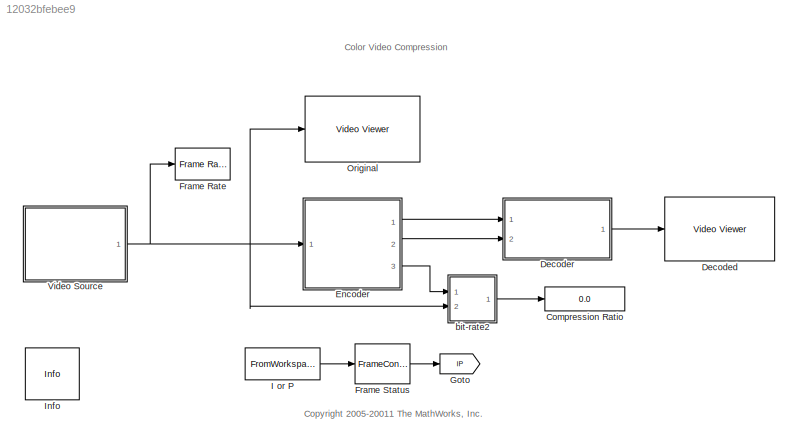
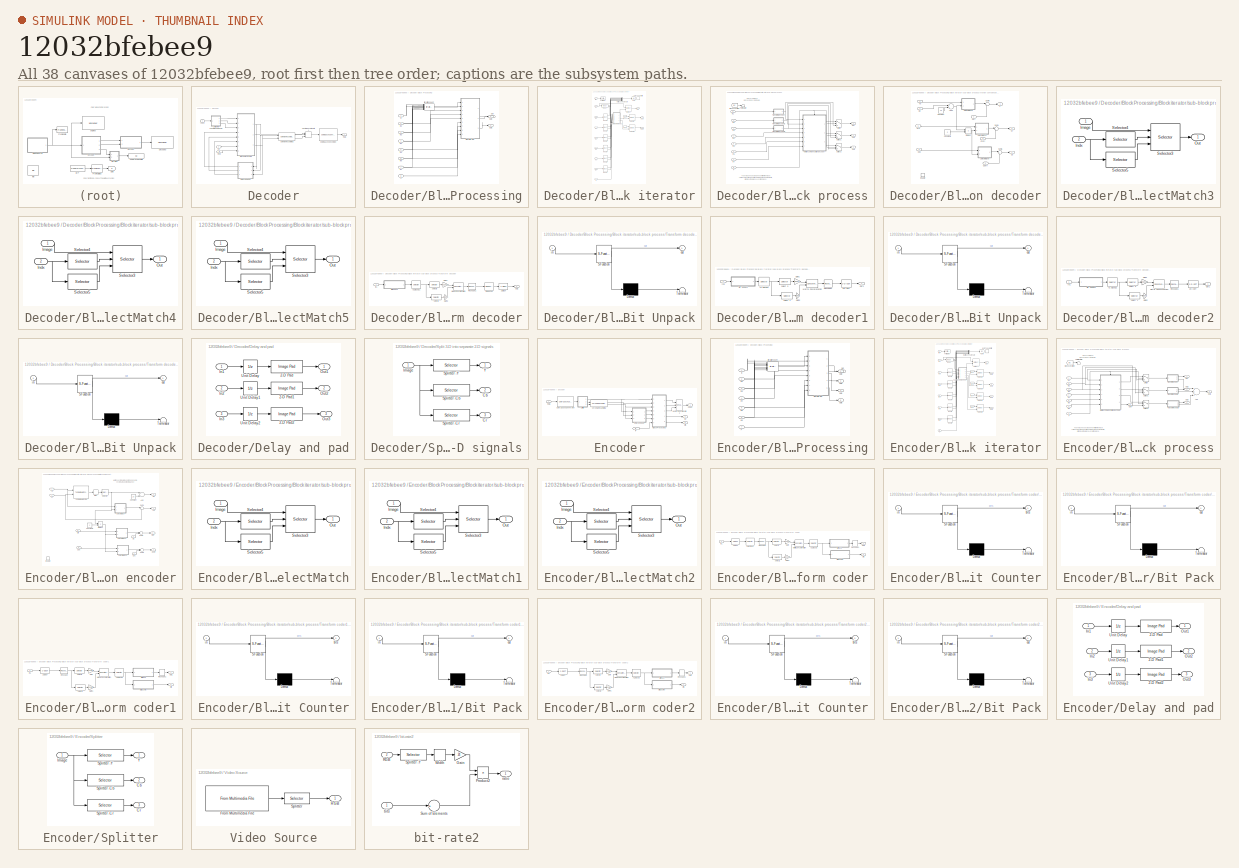
[diagram: thumbnail index - all 38 canvases of the model, root first then tree order]
MODEL slx_12032bfebee9
KIND model
CONFIG AbsTol = auto
CONFIG FixedStep = auto
CONFIG MaxStep = auto
CONFIG MinStep = auto
CONFIG RelTol = 1e-3
CONFIG SampleTimeConstraint = Unconstrained
CONFIG Solver = FixedStepDiscrete
CONFIG SolverMode = Auto
CONFIG SolverName = FixedStepDiscrete
CONFIG StartTime = 0.0
CONFIG StopTime = inf
BLOCK [Display] Compression Ratio
  Decimation = 1
  Ports = [1]
BLOCK [Reference] Decoded  REF=visionsinks/Video Viewer
  Ports = [1]
  SourceBlock = visionsinks/Video Viewer
  SourceType = Video Viewer
  UserDataPersistent = on
BLOCK [SubSystem] Decoder
  Ports = [2, 1]
  RequestExecContextInheritance = off
  Variant = off
BLOCK [SubSystem] Decoder/Block Processing
  CopyFcn = set_param(gcb,'LinkStatus','none');
  DialogController = vipDDGCreate
  Ports = [8, 3]
  RequestExecContextInheritance = off
  TreatAsAtomicUnit = on
  Variant = off
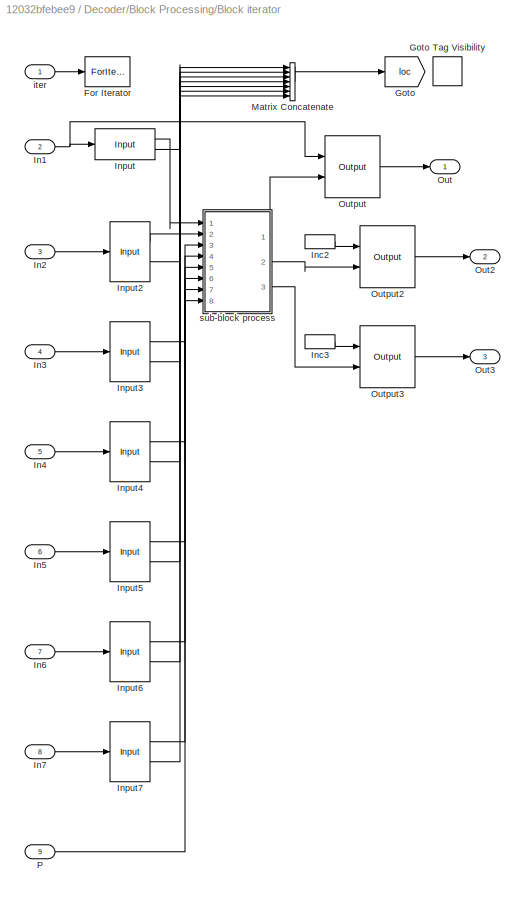
BLOCK [SubSystem] Decoder/Block Processing/Block iterator
  CopyFcn = set_param(gcb,'ReferenceBlock','');
  Ports = [9, 3]
  RequestExecContextInheritance = off
  Variant = off
BLOCK [ForIterator] Decoder/Block Processing/Block iterator/For Iterator
  IndexMode = Zero-based
  IterationLimit = (sz(1)/M)*(sz(2)/N)
  IterationSource = external
  IterationVariableDataType = double
  Ports = [1]
  ShowIterationPort = off
BLOCK [Goto] Decoder/Block Processing/Block iterator/Goto
  GotoTag = loc
  TagVisibility = scoped
BLOCK [GotoTagVisibility] Decoder/Block Processing/Block iterator/Goto Tag Visibility
  GotoTag = loc
BLOCK [Inport] Decoder/Block Processing/Block iterator/In1
  IconDisplay = Port number
  Port = 2
BLOCK [Inport] Decoder/Block Processing/Block iterator/In2
  IconDisplay = Port number
  Port = 3
BLOCK [Inport] Decoder/Block Processing/Block iterator/In3
  IconDisplay = Port number
  Port = 4
BLOCK [Inport] Decoder/Block Processing/Block iterator/In4
  IconDisplay = Port number
  Port = 5
BLOCK [Inport] Decoder/Block Processing/Block iterator/In5
  IconDisplay = Port number
  Port = 6
BLOCK [Inport] Decoder/Block Processing/Block iterator/In6
  IconDisplay = Port number
  Port = 7
BLOCK [Inport] Decoder/Block Processing/Block iterator/In7
  IconDisplay = Port number
  Port = 8
BLOCK [InportShadow] Decoder/Block Processing/Block iterator/Inc2
  IconDisplay = Port number
  Port = 2
BLOCK [InportShadow] Decoder/Block Processing/Block iterator/Inc3
  IconDisplay = Port number
  Port = 2
BLOCK [Reference] Decoder/Block Processing/Block iterator/Input  REF=vipmisc/Input
  Ports = [1, 2]
  SourceBlock = vipmisc/Input
  SourceType = Input for block processing
BLOCK [Reference] Decoder/Block Processing/Block iterator/Input2  REF=vipmisc/Input
  Ports = [1, 2]
  SourceBlock = vipmisc/Input
  SourceType = Input for block processing
BLOCK [Reference] Decoder/Block Processing/Block iterator/Input3  REF=vipmisc/Input
  Ports = [1, 2]
  SourceBlock = vipmisc/Input
  SourceType = Input for block processing
BLOCK [Reference] Decoder/Block Processing/Block iterator/Input4  REF=vipmisc/Input
  Ports = [1, 2]
  SourceBlock = vipmisc/Input
  SourceType = Input for block processing
BLOCK [Reference] Decoder/Block Processing/Block iterator/Input5  REF=vipmisc/Input
  Ports = [1, 2]
  SourceBlock = vipmisc/Input
  SourceType = Input for block processing
BLOCK [Reference] Decoder/Block Processing/Block iterator/Input6  REF=vipmisc/Input
  Ports = [1, 2]
  SourceBlock = vipmisc/Input
  SourceType = Input for block processing
BLOCK [Reference] Decoder/Block Processing/Block iterator/Input7  REF=vipmisc/Input
  Ports = [1, 2]
  SourceBlock = vipmisc/Input
  SourceType = Input for block processing
BLOCK [Concatenate] Decoder/Block Processing/Block iterator/Matrix Concatenate
  ConcatenateDimension = 2
  Mode = Multidimensional array
  NumInputs = 7
  Ports = [7, 1]
BLOCK [Outport] Decoder/Block Processing/Block iterator/Out
  IconDisplay = Port number
BLOCK [Outport] Decoder/Block Processing/Block iterator/Out2
  IconDisplay = Port number
  Port = 2
BLOCK [Outport] Decoder/Block Processing/Block iterator/Out3
  IconDisplay = Port number
  Port = 3
BLOCK [Reference] Decoder/Block Processing/Block iterator/Output  REF=vipmisc/Output
  Ports = [2, 1]
  SourceBlock = vipmisc/Output
BLOCK [Reference] Decoder/Block Processing/Block iterator/Output2  REF=vipmisc/Output
  Ports = [2, 1]
  SourceBlock = vipmisc/Output
BLOCK [Reference] Decoder/Block Processing/Block iterator/Output3  REF=vipmisc/Output
  Ports = [2, 1]
  SourceBlock = vipmisc/Output
BLOCK [Inport] Decoder/Block Processing/Block iterator/P
  IconDisplay = Port number
  Port = 9
BLOCK [Inport] Decoder/Block Processing/Block iterator/iter
  IconDisplay = Port number
BLOCK [SubSystem] Decoder/Block Processing/Block iterator/sub-block process
  Ports = [8, 3]
  RequestExecContextInheritance = off
  Variant = off
BLOCK [From] Decoder/Block Processing/Block iterator/sub-block process/Block Location
  GotoTag = loc
  TagVisibility = scoped
BLOCK [Inport] Decoder/Block Processing/Block iterator/sub-block process/In1
  IconDisplay = Port number
BLOCK [Inport] Decoder/Block Processing/Block iterator/sub-block process/In2
  IconDisplay = Port number
  Port = 2
BLOCK [Inport] Decoder/Block Processing/Block iterator/sub-block process/In3
  IconDisplay = Port number
  Port = 3
BLOCK [Inport] Decoder/Block Processing/Block iterator/sub-block process/In4
  IconDisplay = Port number
  Port = 4
BLOCK [Inport] Decoder/Block Processing/Block iterator/sub-block process/In5
  IconDisplay = Port number
  Port = 5
BLOCK [Inport] Decoder/Block Processing/Block iterator/sub-block process/In6
  IconDisplay = Port number
  Port = 6
BLOCK [Inport] Decoder/Block Processing/Block iterator/sub-block process/In7
  IconDisplay = Port number
  Port = 7
BLOCK [SubSystem] Decoder/Block Processing/Block iterator/sub-block process/Motion compensation decoder
  Ports = [7, 3, 1]
  RequestExecContextInheritance = off
  Variant = off
BLOCK [Sum] Decoder/Block Processing/Block iterator/sub-block process/Motion compensation decoder/Add1
  InputSameDT = off
  OutDataTypeStr = single
  Ports = [2, 1]
  SaturateOnIntegerOverflow = off
BLOCK [Outport] Decoder/Block Processing/Block iterator/sub-block process/Motion compensation decoder/Cb
  IconDisplay = Port number
  Port = 2
BLOCK [Inport] Decoder/Block Processing/Block iterator/sub-block process/Motion compensation decoder/Cberr
  IconDisplay = Port number
  Port = 2
BLOCK [Inport] Decoder/Block Processing/Block iterator/sub-block process/Motion compensation decoder/Cbp
  IconDisplay = Port number
  Port = 5
BLOCK [Constant] Decoder/Block Processing/Block iterator/sub-block process/Motion compensation decoder/Constant
  OutDataTypeStr = int32
  SampleTime = -1
  Value = 15
  VectorParams1D = off
BLOCK [Constant] Decoder/Block Processing/Block iterator/sub-block process/Motion compensation decoder/Constant1
  OutDataTypeStr = int32
  SampleTime = -1
  Value = 2
  VectorParams1D = off
BLOCK [Outport] Decoder/Block Processing/Block iterator/sub-block process/Motion compensation decoder/Cr
  IconDisplay = Port number
  Port = 3
BLOCK [Inport] Decoder/Block Processing/Block iterator/sub-block process/Motion compensation decoder/Crerr
  IconDisplay = Port number
  Port = 3
BLOCK [Inport] Decoder/Block Processing/Block iterator/sub-block process/Motion compensation decoder/Crp
  IconDisplay = Port number
  Port = 6
BLOCK [Product] Decoder/Block Processing/Block iterator/sub-block process/Motion compensation decoder/Divide2
  InputSameDT = off
  Inputs = */
  OutDataTypeStr = int8
  Ports = [2, 1]
  SaturateOnIntegerOverflow = off
BLOCK [EnablePort] Decoder/Block Processing/Block iterator/sub-block process/Motion compensation decoder/Enable
  Ports = []
  PropagateVarSize = During execution
BLOCK [Inport] Decoder/Block Processing/Block iterator/sub-block process/Motion compensation decoder/MV
  IconDisplay = Port number
  Port = 7
BLOCK [SubSystem] Decoder/Block Processing/Block iterator/sub-block process/Motion compensation decoder/SelectMatch3
  Ports = [2, 1]
  RequestExecContextInheritance = off
  Variant = off
BLOCK [Inport] Decoder/Block Processing/Block iterator/sub-block process/Motion compensation decoder/SelectMatch3/Image
  IconDisplay = Port number
BLOCK [Inport] Decoder/Block Processing/Block iterator/sub-block process/Motion compensation decoder/SelectMatch3/Indx
  IconDisplay = Port number
  Port = 2
BLOCK [Outport] Decoder/Block Processing/Block iterator/sub-block process/Motion compensation decoder/SelectMatch3/Out
  IconDisplay = Port number
BLOCK [Selector] Decoder/Block Processing/Block iterator/sub-block process/Motion compensation decoder/SelectMatch3/Selector3
  IndexMode = Zero-based
  IndexOptions = Starting index (port),Starting index (port)
  Indices = 1,1
  InputPortWidth = 3
  NumberOfDimensions = 2
  OutputSizes = 16, 16
  Ports = [3, 1]
BLOCK [Selector] Decoder/Block Processing/Block iterator/sub-block process/Motion compensation decoder/SelectMatch3/Selector4
  IndexOptions = Index vector (dialog)
  Indices = 1
  InputPortWidth = 2
  OutputSizes = 1
  Ports = [1, 1]
BLOCK [Selector] Decoder/Block Processing/Block iterator/sub-block process/Motion compensation decoder/SelectMatch3/Selector5
  IndexOptions = Index vector (dialog)
  Indices = 2
  InputPortWidth = 2
  OutputSizes = 1
  Ports = [1, 1]
BLOCK [SubSystem] Decoder/Block Processing/Block iterator/sub-block process/Motion compensation decoder/SelectMatch4
  Ports = [2, 1]
  RequestExecContextInheritance = off
  Variant = off
BLOCK [Inport] Decoder/Block Processing/Block iterator/sub-block process/Motion compensation decoder/SelectMatch4/Image
  IconDisplay = Port number
BLOCK [Inport] Decoder/Block Processing/Block iterator/sub-block process/Motion compensation decoder/SelectMatch4/Indx
  IconDisplay = Port number
  Port = 2
BLOCK [Outport] Decoder/Block Processing/Block iterator/sub-block process/Motion compensation decoder/SelectMatch4/Out
  IconDisplay = Port number
BLOCK [Selector] Decoder/Block Processing/Block iterator/sub-block process/Motion compensation decoder/SelectMatch4/Selector3
  IndexMode = Zero-based
  IndexOptions = Starting index (port),Starting index (port)
  Indices = 1,1
  InputPortWidth = 3
  NumberOfDimensions = 2
  OutputSizes = 8, 8
  Ports = [3, 1]
BLOCK [Selector] Decoder/Block Processing/Block iterator/sub-block process/Motion compensation decoder/SelectMatch4/Selector4
  IndexOptions = Index vector (dialog)
  Indices = 1
  InputPortWidth = 2
  OutputSizes = 1
  Ports = [1, 1]
BLOCK [Selector] Decoder/Block Processing/Block iterator/sub-block process/Motion compensation decoder/SelectMatch4/Selector5
  IndexOptions = Index vector (dialog)
  Indices = 2
  InputPortWidth = 2
  OutputSizes = 1
  Ports = [1, 1]
BLOCK [SubSystem] Decoder/Block Processing/Block iterator/sub-block process/Motion compensation decoder/SelectMatch5
  Ports = [2, 1]
  RequestExecContextInheritance = off
  Variant = off
BLOCK [Inport] Decoder/Block Processing/Block iterator/sub-block process/Motion compensation decoder/SelectMatch5/Image
  IconDisplay = Port number
BLOCK [Inport] Decoder/Block Processing/Block iterator/sub-block process/Motion compensation decoder/SelectMatch5/Indx
  IconDisplay = Port number
  Port = 2
BLOCK [Outport] Decoder/Block Processing/Block iterator/sub-block process/Motion compensation decoder/SelectMatch5/Out
  IconDisplay = Port number
BLOCK [Selector] Decoder/Block Processing/Block iterator/sub-block process/Motion compensation decoder/SelectMatch5/Selector3
  IndexMode = Zero-based
  IndexOptions = Starting index (port),Starting index (port)
  Indices = 1,1
  InputPortWidth = 3
  NumberOfDimensions = 2
  OutputSizes = 8, 8
  Ports = [3, 1]
BLOCK [Selector] Decoder/Block Processing/Block iterator/sub-block process/Motion compensation decoder/SelectMatch5/Selector4
  IndexOptions = Index vector (dialog)
  Indices = 1
  InputPortWidth = 2
  OutputSizes = 1
  Ports = [1, 1]
BLOCK [Selector] Decoder/Block Processing/Block iterator/sub-block process/Motion compensation decoder/SelectMatch5/Selector5
  IndexOptions = Index vector (dialog)
  Indices = 2
  InputPortWidth = 2
  OutputSizes = 1
  Ports = [1, 1]
BLOCK [Sum] Decoder/Block Processing/Block iterator/sub-block process/Motion compensation decoder/Sum4
  IconShape = round
  InputSameDT = off
  Inputs = |++
  OutDataTypeStr = Inherit: Inherit via internal rule
  Ports = [2, 1]
  SaturateOnIntegerOverflow = off
BLOCK [Sum] Decoder/Block Processing/Block iterator/sub-block process/Motion compensation decoder/Sum5
  IconShape = round
  InputSameDT = off
  Inputs = |++
  OutDataTypeStr = Inherit: Inherit via internal rule
  Ports = [2, 1]
  SaturateOnIntegerOverflow = off
BLOCK [Sum] Decoder/Block Processing/Block iterator/sub-block process/Motion compensation decoder/Sum6
  IconShape = round
  InputSameDT = off
  Inputs = |++
  OutDataTypeStr = Inherit: Inherit via internal rule
  Ports = [2, 1]
  SaturateOnIntegerOverflow = off
BLOCK [Outport] Decoder/Block Processing/Block iterator/sub-block process/Motion compensation decoder/Y
  IconDisplay = Port number
BLOCK [Inport] Decoder/Block Processing/Block iterator/sub-block process/Motion compensation decoder/Yerr
  IconDisplay = Port number
BLOCK [Inport] Decoder/Block Processing/Block iterator/sub-block process/Motion compensation decoder/Yp
  IconDisplay = Port number
  Port = 4
BLOCK [Outport] Decoder/Block Processing/Block iterator/sub-block process/Out
  IconDisplay = Port number
BLOCK [Outport] Decoder/Block Processing/Block iterator/sub-block process/Out2
  IconDisplay = Port number
  Port = 2
BLOCK [Outport] Decoder/Block Processing/Block iterator/sub-block process/Out3
  IconDisplay = Port number
  Port = 3
BLOCK [Inport] Decoder/Block Processing/Block iterator/sub-block process/P
  IconDisplay = Port number
  Port = 8
BLOCK [Switch] Decoder/Block Processing/Block iterator/sub-block process/Switch
  Criteria = u2 ~= 0
  InputSameDT = off
  SaturateOnIntegerOverflow = off
BLOCK [Switch] Decoder/Block Processing/Block iterator/sub-block process/Switch1
  Criteria = u2 ~= 0
  InputSameDT = off
  SaturateOnIntegerOverflow = off
BLOCK [Switch] Decoder/Block Processing/Block iterator/sub-block process/Switch2
  Criteria = u2 ~= 0
  InputSameDT = off
  SaturateOnIntegerOverflow = off
BLOCK [Terminator] Decoder/Block Processing/Block iterator/sub-block process/Terminator I
BLOCK [SubSystem] Decoder/Block Processing/Block iterator/sub-block process/Transform decoder
  Ports = [1, 1]
  RequestExecContextInheritance = off
  Variant = off
BLOCK [Reference] Decoder/Block Processing/Block iterator/sub-block process/Transform decoder/2D IDCT  REF=visiontransforms/2-D IDCT
  Ports = [1, 1]
  SourceBlock = visiontransforms/2-D IDCT
  SourceType = 2-D IDCT
BLOCK [Selector] Decoder/Block Processing/Block iterator/sub-block process/Transform decoder/AC zigzag1
  IndexOptions = Index vector (dialog)
  Indices = [1     3     4    10    11    21    22    36     2     5     9    12    20    23    35    37     6     8    13    19    24    34    38    49     7    14    18    25    33    39    48    50    15    17    26    32    40    47    51     58    16    27    31    41    46    52    57    59    28    30    42    45     53    56    60    63    29    43    44    54    55    61    62    64]  <repeated x3 — deduplicated; at blocks: AC zigzag1>
  OutputSizes = 1
  Ports = [1, 1]
BLOCK [SubSystem] Decoder/Block Processing/Block iterator/sub-block process/Transform decoder/Bit Unpack
  ErrorFcn = Stateflow.Translate.translate
  PermitHierarchicalResolution = ExplicitOnly
  Ports = [1, 1]
  RequestExecContextInheritance = off
  SFBlockType = MATLAB Function
  TreatAsAtomicUnit = on
  Variant = off
BLOCK [Demux] Decoder/Block Processing/Block iterator/sub-block process/Transform decoder/Bit Unpack/ Demux 
  Outputs = 1
  Ports = [1, 1]
BLOCK [S-Function] Decoder/Block Processing/Block iterator/sub-block process/Transform decoder/Bit Unpack/ SFunction 
  EnableBusSupport = off
  FunctionName = sf_sfun
  PortCounts = [1 2]
  Ports = [1, 2]
  SFunctionDeploymentMode = off
  Tag = Stateflow S-Function vipcodec_color 4
BLOCK [Terminator] Decoder/Block Processing/Block iterator/sub-block process/Transform decoder/Bit Unpack/ Terminator 
BLOCK [Inport] Decoder/Block Processing/Block iterator/sub-block process/Transform decoder/Bit Unpack/in
  IconDisplay = Port number
BLOCK [Outport] Decoder/Block Processing/Block iterator/sub-block process/Transform decoder/Bit Unpack/out
  IconDisplay = Port number
BLOCK [Gain] Decoder/Block Processing/Block iterator/sub-block process/Transform decoder/Gain1
  Gain = 16/255
  OutDataTypeStr = Inherit: Inherit via internal rule
  ParamDataTypeStr = Inherit: Inherit via internal rule
  SaturateOnIntegerOverflow = off
BLOCK [Gain] Decoder/Block Processing/Block iterator/sub-block process/Transform decoder/Gain2
  Gain = 16/255
  OutDataTypeStr = Inherit: Inherit via internal rule
  ParamDataTypeStr = Inherit: Inherit via internal rule
  SaturateOnIntegerOverflow = off
BLOCK [Reference] Decoder/Block Processing/Block iterator/sub-block process/Transform decoder/Image Pad  REF=visionutilities/Image Pad
  Ports = [1, 1]
  SourceBlock = visionutilities/Image Pad
  SourceType = Image Pad
BLOCK [Inport] Decoder/Block Processing/Block iterator/sub-block process/Transform decoder/In1
  IconDisplay = Port number
BLOCK [Concatenate] Decoder/Block Processing/Block iterator/sub-block process/Transform decoder/Matrix Concatenation
  Mode = Multidimensional array
  Ports = [2, 1]
BLOCK [Outport] Decoder/Block Processing/Block iterator/sub-block process/Transform decoder/Out1
  IconDisplay = Port number
BLOCK [Reshape] Decoder/Block Processing/Block iterator/sub-block process/Transform decoder/Reshape1
  OutputDimensionality = Customize
  OutputDimensions = [8,8]
  Ports = [1, 1]
BLOCK [Selector] Decoder/Block Processing/Block iterator/sub-block process/Transform decoder/select 0
  IndexMode = Zero-based
  IndexOptions = Index vector (dialog)
  Indices = 0
  OutputSizes = 8, 8
  Ports = [1, 1]
BLOCK [Selector] Decoder/Block Processing/Block iterator/sub-block process/Transform decoder/select 1
  IndexMode = Zero-based
  IndexOptions = Starting index (dialog)
  Indices = 1
  OutputSizes = 63
  Ports = [1, 1]
BLOCK [SubSystem] Decoder/Block Processing/Block iterator/sub-block process/Transform decoder1
  Ports = [1, 1]
  RequestExecContextInheritance = off
  Variant = off
BLOCK [Reference] Decoder/Block Processing/Block iterator/sub-block process/Transform decoder1/2D IDCT  REF=visiontransforms/2-D IDCT
  Ports = [1, 1]
  SourceBlock = visiontransforms/2-D IDCT
  SourceType = 2-D IDCT
BLOCK [Selector] Decoder/Block Processing/Block iterator/sub-block process/Transform decoder1/AC zigzag1
  IndexOptions = Index vector (dialog)
  OutputSizes = 1
  Ports = [1, 1]
BLOCK [SubSystem] Decoder/Block Processing/Block iterator/sub-block process/Transform decoder1/Bit Unpack
  ErrorFcn = Stateflow.Translate.translate
  PermitHierarchicalResolution = ExplicitOnly
  Ports = [1, 1]
  RequestExecContextInheritance = off
  SFBlockType = MATLAB Function
  TreatAsAtomicUnit = on
  Variant = off
BLOCK [Demux] Decoder/Block Processing/Block iterator/sub-block process/Transform decoder1/Bit Unpack/ Demux 
  Outputs = 1
  Ports = [1, 1]
BLOCK [S-Function] Decoder/Block Processing/Block iterator/sub-block process/Transform decoder1/Bit Unpack/ SFunction 
  EnableBusSupport = off
  FunctionName = sf_sfun
  PortCounts = [1 2]
  Ports = [1, 2]
  SFunctionDeploymentMode = off
  Tag = Stateflow S-Function vipcodec_color 5
BLOCK [Terminator] Decoder/Block Processing/Block iterator/sub-block process/Transform decoder1/Bit Unpack/ Terminator 
BLOCK [Inport] Decoder/Block Processing/Block iterator/sub-block process/Transform decoder1/Bit Unpack/in
  IconDisplay = Port number
BLOCK [Outport] Decoder/Block Processing/Block iterator/sub-block process/Transform decoder1/Bit Unpack/out
  IconDisplay = Port number
BLOCK [Gain] Decoder/Block Processing/Block iterator/sub-block process/Transform decoder1/Gain1
  Gain = 8/255
  OutDataTypeStr = Inherit: Inherit via internal rule
  ParamDataTypeStr = Inherit: Inherit via internal rule
  SaturateOnIntegerOverflow = off
BLOCK [Gain] Decoder/Block Processing/Block iterator/sub-block process/Transform decoder1/Gain2
  Gain = 8/255
  OutDataTypeStr = Inherit: Inherit via internal rule
  ParamDataTypeStr = Inherit: Inherit via internal rule
  SaturateOnIntegerOverflow = off
BLOCK [Inport] Decoder/Block Processing/Block iterator/sub-block process/Transform decoder1/In1
  IconDisplay = Port number
BLOCK [Concatenate] Decoder/Block Processing/Block iterator/sub-block process/Transform decoder1/Matrix Concatenation
  Mode = Multidimensional array
  Ports = [2, 1]
BLOCK [Outport] Decoder/Block Processing/Block iterator/sub-block process/Transform decoder1/Out1
  IconDisplay = Port number
BLOCK [Reshape] Decoder/Block Processing/Block iterator/sub-block process/Transform decoder1/Reshape1
  OutputDimensionality = Customize
  OutputDimensions = [8,8]
  Ports = [1, 1]
BLOCK [Selector] Decoder/Block Processing/Block iterator/sub-block process/Transform decoder1/select 0
  IndexMode = Zero-based
  IndexOptions = Index vector (dialog)
  Indices = 0
  OutputSizes = 8, 8
  Ports = [1, 1]
BLOCK [Selector] Decoder/Block Processing/Block iterator/sub-block process/Transform decoder1/select 1
  IndexMode = Zero-based
  IndexOptions = Starting index (dialog)
  Indices = 1
  OutputSizes = 63
  Ports = [1, 1]
BLOCK [SubSystem] Decoder/Block Processing/Block iterator/sub-block process/Transform decoder2
  Ports = [1, 1]
  RequestExecContextInheritance = off
  Variant = off
BLOCK [Reference] Decoder/Block Processing/Block iterator/sub-block process/Transform decoder2/2D IDCT  REF=visiontransforms/2-D IDCT
  Ports = [1, 1]
  SourceBlock = visiontransforms/2-D IDCT
  SourceType = 2-D IDCT
BLOCK [Selector] Decoder/Block Processing/Block iterator/sub-block process/Transform decoder2/AC zigzag1
  IndexOptions = Index vector (dialog)
  OutputSizes = 1
  Ports = [1, 1]
BLOCK [SubSystem] Decoder/Block Processing/Block iterator/sub-block process/Transform decoder2/Bit Unpack
  ErrorFcn = Stateflow.Translate.translate
  PermitHierarchicalResolution = ExplicitOnly
  Ports = [1, 1]
  RequestExecContextInheritance = off
  SFBlockType = MATLAB Function
  TreatAsAtomicUnit = on
  Variant = off
BLOCK [Demux] Decoder/Block Processing/Block iterator/sub-block process/Transform decoder2/Bit Unpack/ Demux 
  Outputs = 1
  Ports = [1, 1]
BLOCK [S-Function] Decoder/Block Processing/Block iterator/sub-block process/Transform decoder2/Bit Unpack/ SFunction 
  EnableBusSupport = off
  FunctionName = sf_sfun
  PortCounts = [1 2]
  Ports = [1, 2]
  SFunctionDeploymentMode = off
  Tag = Stateflow S-Function vipcodec_color 6
BLOCK [Terminator] Decoder/Block Processing/Block iterator/sub-block process/Transform decoder2/Bit Unpack/ Terminator 
BLOCK [Inport] Decoder/Block Processing/Block iterator/sub-block process/Transform decoder2/Bit Unpack/in
  IconDisplay = Port number
BLOCK [Outport] Decoder/Block Processing/Block iterator/sub-block process/Transform decoder2/Bit Unpack/out
  IconDisplay = Port number
BLOCK [Gain] Decoder/Block Processing/Block iterator/sub-block process/Transform decoder2/Gain1
  Gain = 8/255
  OutDataTypeStr = Inherit: Inherit via internal rule
  ParamDataTypeStr = Inherit: Inherit via internal rule
  SaturateOnIntegerOverflow = off
BLOCK [Gain] Decoder/Block Processing/Block iterator/sub-block process/Transform decoder2/Gain2
  Gain = 8/255
  OutDataTypeStr = Inherit: Inherit via internal rule
  ParamDataTypeStr = Inherit: Inherit via internal rule
  SaturateOnIntegerOverflow = off
BLOCK [Inport] Decoder/Block Processing/Block iterator/sub-block process/Transform decoder2/In1
  IconDisplay = Port number
BLOCK [Concatenate] Decoder/Block Processing/Block iterator/sub-block process/Transform decoder2/Matrix Concatenation
  Mode = Multidimensional array
  Ports = [2, 1]
BLOCK [Outport] Decoder/Block Processing/Block iterator/sub-block process/Transform decoder2/Out1
  IconDisplay = Port number
BLOCK [Reshape] Decoder/Block Processing/Block iterator/sub-block process/Transform decoder2/Reshape1
  OutputDimensionality = Customize
  OutputDimensions = [8,8]
  Ports = [1, 1]
BLOCK [Selector] Decoder/Block Processing/Block iterator/sub-block process/Transform decoder2/select 0
  IndexMode = Zero-based
  IndexOptions = Index vector (dialog)
  Indices = (0)
  OutputSizes = 8,8
  Ports = [1, 1]
BLOCK [Selector] Decoder/Block Processing/Block iterator/sub-block process/Transform decoder2/select 1
  IndexMode = Zero-based
  IndexOptions = Starting index (dialog)
  Indices = (1)
  OutputSizes = 63
  Ports = [1, 1]
BLOCK [Inport] Decoder/Block Processing/In
  IconDisplay = Port number
BLOCK [Inport] Decoder/Block Processing/In2
  IconDisplay = Port number
  Port = 2
BLOCK [Inport] Decoder/Block Processing/In3
  IconDisplay = Port number
  Port = 3
BLOCK [Inport] Decoder/Block Processing/In4
  IconDisplay = Port number
  Port = 4
BLOCK [Inport] Decoder/Block Processing/In5
  IconDisplay = Port number
  Port = 5
BLOCK [Inport] Decoder/Block Processing/In6
  IconDisplay = Port number
  Port = 6
BLOCK [Inport] Decoder/Block Processing/In7
  IconDisplay = Port number
  Port = 7
BLOCK [Reference] Decoder/Block Processing/Iteration count  REF=vipmisc/Iteration count
  Ports = [7, 1]
  SourceBlock = vipmisc/Iteration count
  SourceType = Block processing iteration counter
BLOCK [Outport] Decoder/Block Processing/Out
  IconDisplay = Port number
BLOCK [Outport] Decoder/Block Processing/Out2
  IconDisplay = Port number
  Port = 2
BLOCK [Outport] Decoder/Block Processing/Out3
  IconDisplay = Port number
  Port = 3
BLOCK [Inport] Decoder/Block Processing/P
  IconDisplay = Port number
  Port = 8
BLOCK [Reference] Decoder/Chroma Resampling  REF=visionconversions/Chroma
Resampling
  Ports = [2, 2]
  SourceBlock = visionconversions/Chroma\nResampling
  SourceType = Chroma Resampling
BLOCK [Reference] Decoder/Color Space Conversion  REF=visionconversions/Color Space
 Conversion
  Ports = [1, 1]
  SourceBlock = visionconversions/Color Space\n Conversion
  SourceType = Color Space Conversion
BLOCK [SubSystem] Decoder/Delay and pad
  Ports = [3, 3]
  RequestExecContextInheritance = off
  Variant = off
BLOCK [Reference] Decoder/Delay and pad/2-D Pad  REF=visionutilities/Image Pad
  Ports = [1, 1]
  SourceBlock = visionutilities/Image Pad
  SourceType = Image Pad
BLOCK [Reference] Decoder/Delay and pad/2-D Pad1  REF=visionutilities/Image Pad
  Ports = [1, 1]
  SourceBlock = visionutilities/Image Pad
  SourceType = Image Pad
BLOCK [Reference] Decoder/Delay and pad/2-D Pad2  REF=visionutilities/Image Pad
  Ports = [1, 1]
  SourceBlock = visionutilities/Image Pad
  SourceType = Image Pad
BLOCK [Inport] Decoder/Delay and pad/In1
  IconDisplay = Port number
BLOCK [Inport] Decoder/Delay and pad/In2
  IconDisplay = Port number
  Port = 2
BLOCK [Inport] Decoder/Delay and pad/In3
  IconDisplay = Port number
  Port = 3
BLOCK [Outport] Decoder/Delay and pad/Out1
  IconDisplay = Port number
BLOCK [Outport] Decoder/Delay and pad/Out2
  IconDisplay = Port number
  Port = 2
BLOCK [Outport] Decoder/Delay and pad/Out3
  IconDisplay = Port number
  Port = 3
BLOCK [UnitDelay] Decoder/Delay and pad/Unit Delay
  InputProcessing = Elements as channels (sample based)
  SampleTime = -1
BLOCK [UnitDelay] Decoder/Delay and pad/Unit Delay1
  InputProcessing = Elements as channels (sample based)
  SampleTime = -1
BLOCK [UnitDelay] Decoder/Delay and pad/Unit Delay2
  InputProcessing = Elements as channels (sample based)
  SampleTime = -1
BLOCK [From] Decoder/From
  CloseFcn = tagdialog Close
  GotoTag = IP
  TagVisibility = global
BLOCK [Inport] Decoder/MV
  IconDisplay = Port number
  Port = 2
BLOCK [Outport] Decoder/RGB
  IconDisplay = Port number
BLOCK [SubSystem] Decoder/Split 3-D into separate 2-D signals
  Ports = [1, 3]
  RequestExecContextInheritance = off
  Variant = off
BLOCK [Outport] Decoder/Split 3-D into separate 2-D signals/Cb
  IconDisplay = Port number
  Port = 2
BLOCK [Outport] Decoder/Split 3-D into separate 2-D signals/Cr
  IconDisplay = Port number
  Port = 3
BLOCK [Inport] Decoder/Split 3-D into separate 2-D signals/Image
  IconDisplay = Port number
BLOCK [Selector] Decoder/Split 3-D into separate 2-D signals/Splitter -Cb
  IndexOptions = Select all,Select all,Index vector (dialog)
  Indices = [],[],[2]
  NumberOfDimensions = 3
  OutputSizes = 1
  Ports = [1, 1]
BLOCK [Selector] Decoder/Split 3-D into separate 2-D signals/Splitter -Cr
  IndexOptions = Select all,Select all,Index vector (dialog)
  Indices = [],[],[3]
  NumberOfDimensions = 3
  OutputSizes = 1
  Ports = [1, 1]
BLOCK [Selector] Decoder/Split 3-D into separate 2-D signals/Splitter -Y
  IndexOptions = Select all,Select all,Index vector (dialog)
  Indices = [],[],[1]
  NumberOfDimensions = 3
  OutputSizes = 1
  Ports = [1, 1]
BLOCK [Outport] Decoder/Split 3-D into separate 2-D signals/Y
  IconDisplay = Port number
BLOCK [Concatenate] Decoder/Vector Concatenate1
  ConcatenateDimension = 3
  Mode = Multidimensional array
  NumInputs = 3
  Ports = [3, 1]
BLOCK [Inport] Decoder/YCbCr
  IconDisplay = Port number
BLOCK [SubSystem] Encoder
  Ports = [1, 3]
  RequestExecContextInheritance = off
  Variant = off
BLOCK [SubSystem] Encoder/Block Processing
  CopyFcn = set_param(gcb,'LinkStatus','none');
  DialogController = vipDDGCreate
  Ports = [7, 5]
  RequestExecContextInheritance = off
  TreatAsAtomicUnit = on
  Variant = off
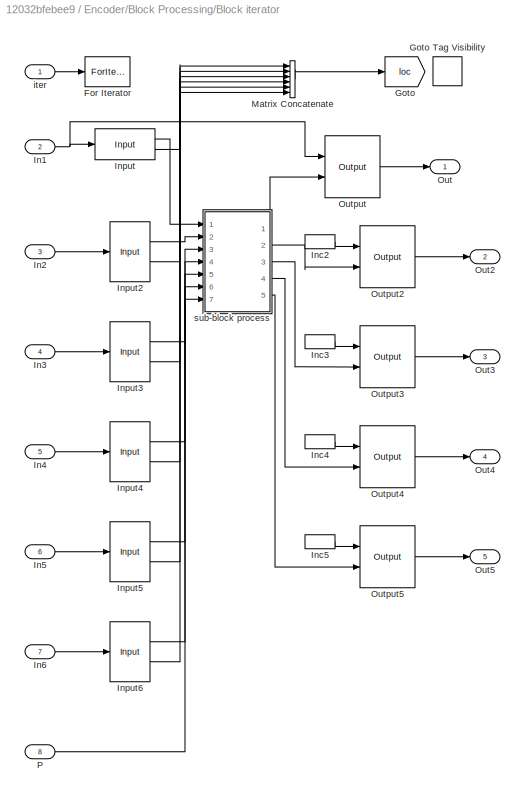
BLOCK [SubSystem] Encoder/Block Processing/Block iterator
  CopyFcn = set_param(gcb,'ReferenceBlock','');
  Ports = [8, 5]
  RequestExecContextInheritance = off
  Variant = off
BLOCK [ForIterator] Encoder/Block Processing/Block iterator/For Iterator
  IndexMode = Zero-based
  IterationLimit = (sz(1)/M)*(sz(2)/N)
  IterationSource = external
  IterationVariableDataType = double
  Ports = [1]
  ShowIterationPort = off
BLOCK [Goto] Encoder/Block Processing/Block iterator/Goto
  GotoTag = loc
  TagVisibility = scoped
BLOCK [GotoTagVisibility] Encoder/Block Processing/Block iterator/Goto Tag Visibility
  GotoTag = loc
BLOCK [Inport] Encoder/Block Processing/Block iterator/In1
  IconDisplay = Port number
  Port = 2
BLOCK [Inport] Encoder/Block Processing/Block iterator/In2
  IconDisplay = Port number
  Port = 3
BLOCK [Inport] Encoder/Block Processing/Block iterator/In3
  IconDisplay = Port number
  Port = 4
BLOCK [Inport] Encoder/Block Processing/Block iterator/In4
  IconDisplay = Port number
  Port = 5
BLOCK [Inport] Encoder/Block Processing/Block iterator/In5
  IconDisplay = Port number
  Port = 6
BLOCK [Inport] Encoder/Block Processing/Block iterator/In6
  IconDisplay = Port number
  Port = 7
BLOCK [InportShadow] Encoder/Block Processing/Block iterator/Inc2
  IconDisplay = Port number
  Port = 2
BLOCK [InportShadow] Encoder/Block Processing/Block iterator/Inc3
  IconDisplay = Port number
  Port = 2
BLOCK [InportShadow] Encoder/Block Processing/Block iterator/Inc4
  IconDisplay = Port number
  Port = 2
BLOCK [InportShadow] Encoder/Block Processing/Block iterator/Inc5
  IconDisplay = Port number
  Port = 2
BLOCK [Reference] Encoder/Block Processing/Block iterator/Input  REF=vipmisc/Input
  Ports = [1, 2]
  SourceBlock = vipmisc/Input
  SourceType = Input for block processing
BLOCK [Reference] Encoder/Block Processing/Block iterator/Input2  REF=vipmisc/Input
  Ports = [1, 2]
  SourceBlock = vipmisc/Input
  SourceType = Input for block processing
BLOCK [Reference] Encoder/Block Processing/Block iterator/Input3  REF=vipmisc/Input
  Ports = [1, 2]
  SourceBlock = vipmisc/Input
  SourceType = Input for block processing
BLOCK [Reference] Encoder/Block Processing/Block iterator/Input4  REF=vipmisc/Input
  Ports = [1, 2]
  SourceBlock = vipmisc/Input
  SourceType = Input for block processing
BLOCK [Reference] Encoder/Block Processing/Block iterator/Input5  REF=vipmisc/Input
  Ports = [1, 2]
  SourceBlock = vipmisc/Input
  SourceType = Input for block processing
BLOCK [Reference] Encoder/Block Processing/Block iterator/Input6  REF=vipmisc/Input
  Ports = [1, 2]
  SourceBlock = vipmisc/Input
  SourceType = Input for block processing
BLOCK [Concatenate] Encoder/Block Processing/Block iterator/Matrix Concatenate
  ConcatenateDimension = 2
  Mode = Multidimensional array
  NumInputs = 6
  Ports = [6, 1]
BLOCK [Outport] Encoder/Block Processing/Block iterator/Out
  IconDisplay = Port number
BLOCK [Outport] Encoder/Block Processing/Block iterator/Out2
  IconDisplay = Port number
  Port = 2
BLOCK [Outport] Encoder/Block Processing/Block iterator/Out3
  IconDisplay = Port number
  Port = 3
BLOCK [Outport] Encoder/Block Processing/Block iterator/Out4
  IconDisplay = Port number
  Port = 4
BLOCK [Outport] Encoder/Block Processing/Block iterator/Out5
  IconDisplay = Port number
  Port = 5
BLOCK [Reference] Encoder/Block Processing/Block iterator/Output  REF=vipmisc/Output
  Ports = [2, 1]
  SourceBlock = vipmisc/Output
BLOCK [Reference] Encoder/Block Processing/Block iterator/Output2  REF=vipmisc/Output
  Ports = [2, 1]
  SourceBlock = vipmisc/Output
BLOCK [Reference] Encoder/Block Processing/Block iterator/Output3  REF=vipmisc/Output
  Ports = [2, 1]
  SourceBlock = vipmisc/Output
BLOCK [Reference] Encoder/Block Processing/Block iterator/Output4  REF=vipmisc/Output
  Ports = [2, 1]
  SourceBlock = vipmisc/Output
BLOCK [Reference] Encoder/Block Processing/Block iterator/Output5  REF=vipmisc/Output
  Ports = [2, 1]
  SourceBlock = vipmisc/Output
BLOCK [Inport] Encoder/Block Processing/Block iterator/P
  IconDisplay = Port number
  Port = 8
BLOCK [Inport] Encoder/Block Processing/Block iterator/iter
  IconDisplay = Port number
BLOCK [SubSystem] Encoder/Block Processing/Block iterator/sub-block process
  Ports = [7, 5]
  RequestExecContextInheritance = off
  Variant = off
BLOCK [Sum] Encoder/Block Processing/Block iterator/sub-block process/Add
  InputSameDT = off
  Inputs = +++
  OutDataTypeStr = Inherit: Inherit via internal rule
  Ports = [3, 1]
  SaturateOnIntegerOverflow = off
BLOCK [From] Encoder/Block Processing/Block iterator/sub-block process/Block Location
  GotoTag = loc
  TagVisibility = scoped
BLOCK [Inport] Encoder/Block Processing/Block iterator/sub-block process/In1
  IconDisplay = Port number
BLOCK [Inport] Encoder/Block Processing/Block iterator/sub-block process/In2
  IconDisplay = Port number
  Port = 2
BLOCK [Inport] Encoder/Block Processing/Block iterator/sub-block process/In3
  IconDisplay = Port number
  Port = 3
BLOCK [Inport] Encoder/Block Processing/Block iterator/sub-block process/In4
  IconDisplay = Port number
  Port = 4
BLOCK [Inport] Encoder/Block Processing/Block iterator/sub-block process/In5
  IconDisplay = Port number
  Port = 5
BLOCK [Inport] Encoder/Block Processing/Block iterator/sub-block process/In6
  IconDisplay = Port number
  Port = 6
BLOCK [SubSystem] Encoder/Block Processing/Block iterator/sub-block process/Motion compensation encoder
  Ports = [6, 4, 1]
  RequestExecContextInheritance = off
  Variant = off
BLOCK [Sum] Encoder/Block Processing/Block iterator/sub-block process/Motion compensation encoder/Add
  InputSameDT = off
  Inputs = +-
  OutDataTypeStr = Inherit: Inherit via internal rule
  Ports = [2, 1]
  SaturateOnIntegerOverflow = off
BLOCK [Bias] Encoder/Block Processing/Block iterator/sub-block process/Motion compensation encoder/Bias
  Bias = -8
  SaturateOnIntegerOverflow = off
BLOCK [Inport] Encoder/Block Processing/Block iterator/sub-block process/Motion compensation encoder/Cbc
  IconDisplay = Port number
  Port = 2
BLOCK [Outport] Encoder/Block Processing/Block iterator/sub-block process/Motion compensation encoder/Cberr
  IconDisplay = Port number
  Port = 2
BLOCK [Inport] Encoder/Block Processing/Block iterator/sub-block process/Motion compensation encoder/Cbp
  IconDisplay = Port number
  Port = 5
BLOCK [Constant] Encoder/Block Processing/Block iterator/sub-block process/Motion compensation encoder/Constant
  OutDataTypeStr = Inherit: Inherit via back propagation
  SampleTime = -1
  Value = 15
  VectorParams1D = off
BLOCK [Constant] Encoder/Block Processing/Block iterator/sub-block process/Motion compensation encoder/Constant1
  OutDataTypeStr = Inherit: Inherit via back propagation
  SampleTime = -1
  Value = 2
  VectorParams1D = off
BLOCK [Inport] Encoder/Block Processing/Block iterator/sub-block process/Motion compensation encoder/Crc
  IconDisplay = Port number
  Port = 3
BLOCK [Outport] Encoder/Block Processing/Block iterator/sub-block process/Motion compensation encoder/Crerr
  IconDisplay = Port number
  Port = 3
BLOCK [Inport] Encoder/Block Processing/Block iterator/sub-block process/Motion compensation encoder/Crp
  IconDisplay = Port number
  Port = 6
BLOCK [Product] Encoder/Block Processing/Block iterator/sub-block process/Motion compensation encoder/Divide1
  InputSameDT = off
  Inputs = */
  OutDataTypeStr = int8
  Ports = [2, 1]
  SaturateOnIntegerOverflow = off
BLOCK [EnablePort] Encoder/Block Processing/Block iterator/sub-block process/Motion compensation encoder/Enable
  Ports = []
  PropagateVarSize = During execution
BLOCK [Outport] Encoder/Block Processing/Block iterator/sub-block process/Motion compensation encoder/MV
  IconDisplay = Port number
  Port = 4
BLOCK [SubSystem] Encoder/Block Processing/Block iterator/sub-block process/Motion compensation encoder/SelectMatch
  Ports = [2, 1]
  RequestExecContextInheritance = off
  Variant = off
BLOCK [Inport] Encoder/Block Processing/Block iterator/sub-block process/Motion compensation encoder/SelectMatch/Image
  IconDisplay = Port number
BLOCK [Inport] Encoder/Block Processing/Block iterator/sub-block process/Motion compensation encoder/SelectMatch/Indx
  IconDisplay = Port number
  Port = 2
BLOCK [Outport] Encoder/Block Processing/Block iterator/sub-block process/Motion compensation encoder/SelectMatch/Out
  IconDisplay = Port number
BLOCK [Selector] Encoder/Block Processing/Block iterator/sub-block process/Motion compensation encoder/SelectMatch/Selector3
  IndexMode = Zero-based
  IndexOptions = Starting index (port),Starting index (port)
  Indices = (1),(1)
  InputPortWidth = 3
  NumberOfDimensions = 2
  OutputSizes = 16,16
  Ports = [3, 1]
BLOCK [Selector] Encoder/Block Processing/Block iterator/sub-block process/Motion compensation encoder/SelectMatch/Selector4
  IndexOptions = Index vector (dialog)
  Indices = (1)
  InputPortWidth = 2
  OutputSizes = 1
  Ports = [1, 1]
BLOCK [Selector] Encoder/Block Processing/Block iterator/sub-block process/Motion compensation encoder/SelectMatch/Selector5
  IndexOptions = Index vector (dialog)
  Indices = (2)
  InputPortWidth = 2
  OutputSizes = 1
  Ports = [1, 1]
BLOCK [SubSystem] Encoder/Block Processing/Block iterator/sub-block process/Motion compensation encoder/SelectMatch1
  Ports = [2, 1]
  RequestExecContextInheritance = off
  Variant = off
BLOCK [Inport] Encoder/Block Processing/Block iterator/sub-block process/Motion compensation encoder/SelectMatch1/Image
  IconDisplay = Port number
BLOCK [Inport] Encoder/Block Processing/Block iterator/sub-block process/Motion compensation encoder/SelectMatch1/Indx
  IconDisplay = Port number
  Port = 2
BLOCK [Outport] Encoder/Block Processing/Block iterator/sub-block process/Motion compensation encoder/SelectMatch1/Out
  IconDisplay = Port number
BLOCK [Selector] Encoder/Block Processing/Block iterator/sub-block process/Motion compensation encoder/SelectMatch1/Selector3
  IndexMode = Zero-based
  IndexOptions = Starting index (port),Starting index (port)
  Indices = (1),(1)
  InputPortWidth = 3
  NumberOfDimensions = 2
  OutputSizes = 8,8
  Ports = [3, 1]
BLOCK [Selector] Encoder/Block Processing/Block iterator/sub-block process/Motion compensation encoder/SelectMatch1/Selector4
  IndexOptions = Index vector (dialog)
  Indices = (1)
  InputPortWidth = 2
  OutputSizes = 1
  Ports = [1, 1]
BLOCK [Selector] Encoder/Block Processing/Block iterator/sub-block process/Motion compensation encoder/SelectMatch1/Selector5
  IndexOptions = Index vector (dialog)
  Indices = (2)
  InputPortWidth = 2
  OutputSizes = 1
  Ports = [1, 1]
BLOCK [SubSystem] Encoder/Block Processing/Block iterator/sub-block process/Motion compensation encoder/SelectMatch2
  Ports = [2, 1]
  RequestExecContextInheritance = off
  Variant = off
BLOCK [Inport] Encoder/Block Processing/Block iterator/sub-block process/Motion compensation encoder/SelectMatch2/Image
  IconDisplay = Port number
BLOCK [Inport] Encoder/Block Processing/Block iterator/sub-block process/Motion compensation encoder/SelectMatch2/Indx
  IconDisplay = Port number
  Port = 2
BLOCK [Outport] Encoder/Block Processing/Block iterator/sub-block process/Motion compensation encoder/SelectMatch2/Out
  IconDisplay = Port number
BLOCK [Selector] Encoder/Block Processing/Block iterator/sub-block process/Motion compensation encoder/SelectMatch2/Selector3
  IndexMode = Zero-based
  IndexOptions = Starting index (port),Starting index (port)
  Indices = (1),(1)
  InputPortWidth = 3
  NumberOfDimensions = 2
  OutputSizes = 8,8
  Ports = [3, 1]
BLOCK [Selector] Encoder/Block Processing/Block iterator/sub-block process/Motion compensation encoder/SelectMatch2/Selector4
  IndexOptions = Index vector (dialog)
  Indices = (1)
  InputPortWidth = 2
  OutputSizes = 1
  Ports = [1, 1]
BLOCK [Selector] Encoder/Block Processing/Block iterator/sub-block process/Motion compensation encoder/SelectMatch2/Selector5
  IndexOptions = Index vector (dialog)
  Indices = (2)
  InputPortWidth = 2
  OutputSizes = 1
  Ports = [1, 1]
BLOCK [Selector] Encoder/Block Processing/Block iterator/sub-block process/Motion compensation encoder/Selector
  IndexOptions = Index vector (dialog)
  Indices = [2 1]
  InputPortWidth = 2
  OutputSizes = 1
  Ports = [1, 1]
BLOCK [Sum] Encoder/Block Processing/Block iterator/sub-block process/Motion compensation encoder/Sum1
  IconShape = round
  InputSameDT = off
  Inputs = |-+
  Ports = [2, 1]
  SaturateOnIntegerOverflow = off
BLOCK [Sum] Encoder/Block Processing/Block iterator/sub-block process/Motion compensation encoder/Sum2
  IconShape = round
  InputSameDT = off
  Inputs = |-+
  Ports = [2, 1]
  SaturateOnIntegerOverflow = off
BLOCK [Sum] Encoder/Block Processing/Block iterator/sub-block process/Motion compensation encoder/Sum3
  IconShape = round
  InputSameDT = off
  Inputs = |-+
  Ports = [2, 1]
  SaturateOnIntegerOverflow = off
BLOCK [Reference] Encoder/Block Processing/Block iterator/sub-block process/Motion compensation encoder/Template Matching  REF=visionanalysis/Template Matching
  Ports = [2, 1]
  SourceBlock = visionanalysis/Template Matching
  SourceType = Template Matching
BLOCK [Inport] Encoder/Block Processing/Block iterator/sub-block process/Motion compensation encoder/Yc
  IconDisplay = Port number
BLOCK [Outport] Encoder/Block Processing/Block iterator/sub-block process/Motion compensation encoder/Yerr
  IconDisplay = Port number
BLOCK [Inport] Encoder/Block Processing/Block iterator/sub-block process/Motion compensation encoder/Yp
  IconDisplay = Port number
  Port = 4
BLOCK [Outport] Encoder/Block Processing/Block iterator/sub-block process/Out
  IconDisplay = Port number
BLOCK [Outport] Encoder/Block Processing/Block iterator/sub-block process/Out2
  IconDisplay = Port number
  Port = 2
BLOCK [Outport] Encoder/Block Processing/Block iterator/sub-block process/Out3
  IconDisplay = Port number
  Port = 3
BLOCK [Outport] Encoder/Block Processing/Block iterator/sub-block process/Out4
  IconDisplay = Port number
  Port = 4
BLOCK [Outport] Encoder/Block Processing/Block iterator/sub-block process/Out5
  IconDisplay = Port number
  Port = 5
BLOCK [Inport] Encoder/Block Processing/Block iterator/sub-block process/P
  IconDisplay = Port number
  Port = 7
BLOCK [Switch] Encoder/Block Processing/Block iterator/sub-block process/Switch
  Criteria = u2 ~= 0
  InputSameDT = off
  SaturateOnIntegerOverflow = off
BLOCK [Switch] Encoder/Block Processing/Block iterator/sub-block process/Switch1
  Criteria = u2 ~= 0
  InputSameDT = off
  SaturateOnIntegerOverflow = off
BLOCK [Switch] Encoder/Block Processing/Block iterator/sub-block process/Switch2
  Criteria = u2 ~= 0
  InputSameDT = off
  SaturateOnIntegerOverflow = off
BLOCK [Terminator] Encoder/Block Processing/Block iterator/sub-block process/TerminatorB
BLOCK [SubSystem] Encoder/Block Processing/Block iterator/sub-block process/Transform coder
  Ports = [1, 2]
  RequestExecContextInheritance = off
  Variant = off
BLOCK [Reference] Encoder/Block Processing/Block iterator/sub-block process/Transform coder/2D DCT  REF=visiontransforms/2-D DCT
  Ports = [1, 1]
  SourceBlock = visiontransforms/2-D DCT
  SourceType = 2-D DCT
BLOCK [Selector] Encoder/Block Processing/Block iterator/sub-block process/Transform coder/AC zigzag
  IndexOptions = Index vector (dialog)
  Indices = ([0  8     1     2     9    16    24    17    10     3     4    11    18    25  32    40    33    26    19    12     5     6    13    20    27    34    41  48    56    49    42    35    28    21    14     7    15    22    29    36  43    50    57    58    51    44    37    30    23    31    38    45    52  59    60    53    46    39    47    54    61    62    55    63]+1)  <repeated x3 — deduplicated; at blocks: AC zigzag>
  OutputSizes = 1
  Ports = [1, 1]
BLOCK [SubSystem] Encoder/Block Processing/Block iterator/sub-block process/Transform coder/Bit Counter
  ErrorFcn = Stateflow.Translate.translate
  PermitHierarchicalResolution = ExplicitOnly
  Ports = [1, 1]
  RequestExecContextInheritance = off
  SFBlockType = MATLAB Function
  TreatAsAtomicUnit = on
  Variant = off
BLOCK [Demux] Encoder/Block Processing/Block iterator/sub-block process/Transform coder/Bit Counter/ Demux 
  Outputs = 1
  Ports = [1, 1]
BLOCK [S-Function] Encoder/Block Processing/Block iterator/sub-block process/Transform coder/Bit Counter/ SFunction 
  EnableBusSupport = off
  FunctionName = sf_sfun
  PortCounts = [1 2]
  Ports = [1, 2]
  SFunctionDeploymentMode = off
  Tag = Stateflow S-Function vipcodec_color 1
BLOCK [Terminator] Encoder/Block Processing/Block iterator/sub-block process/Transform coder/Bit Counter/ Terminator 
BLOCK [Outport] Encoder/Block Processing/Block iterator/sub-block process/Transform coder/Bit Counter/bits
  IconDisplay = Port number
BLOCK [Inport] Encoder/Block Processing/Block iterator/sub-block process/Transform coder/Bit Counter/in
  IconDisplay = Port number
BLOCK [SubSystem] Encoder/Block Processing/Block iterator/sub-block process/Transform coder/Bit Pack
  ErrorFcn = Stateflow.Translate.translate
  PermitHierarchicalResolution = ExplicitOnly
  Ports = [1, 1]
  RequestExecContextInheritance = off
  SFBlockType = MATLAB Function
  TreatAsAtomicUnit = on
  Variant = off
BLOCK [Demux] Encoder/Block Processing/Block iterator/sub-block process/Transform coder/Bit Pack/ Demux 
  Outputs = 1
  Ports = [1, 1]
BLOCK [S-Function] Encoder/Block Processing/Block iterator/sub-block process/Transform coder/Bit Pack/ SFunction 
  EnableBusSupport = off
  FunctionName = sf_sfun
  PortCounts = [1 2]
  Ports = [1, 2]
  SFunctionDeploymentMode = off
  Tag = Stateflow S-Function vipcodec_color 2
BLOCK [Terminator] Encoder/Block Processing/Block iterator/sub-block process/Transform coder/Bit Pack/ Terminator 
BLOCK [Inport] Encoder/Block Processing/Block iterator/sub-block process/Transform coder/Bit Pack/in
  IconDisplay = Port number
BLOCK [Outport] Encoder/Block Processing/Block iterator/sub-block process/Transform coder/Bit Pack/out
  IconDisplay = Port number
BLOCK [Gain] Encoder/Block Processing/Block iterator/sub-block process/Transform coder/Gain
  Gain = 255/16
  OutDataTypeStr = Inherit: Inherit via internal rule
  ParamDataTypeStr = Inherit: Inherit via internal rule
  SaturateOnIntegerOverflow = off
BLOCK [Gain] Encoder/Block Processing/Block iterator/sub-block process/Transform coder/Gain1
  Gain = 255/16
  OutDataTypeStr = Inherit: Inherit via internal rule
  ParamDataTypeStr = Inherit: Inherit via internal rule
  SaturateOnIntegerOverflow = off
BLOCK [Inport] Encoder/Block Processing/Block iterator/sub-block process/Transform coder/In1
  IconDisplay = Port number
BLOCK [Concatenate] Encoder/Block Processing/Block iterator/sub-block process/Transform coder/Matrix Concatenation
  Mode = Multidimensional array
  Ports = [2, 1]
BLOCK [Outport] Encoder/Block Processing/Block iterator/sub-block process/Transform coder/Out1
  IconDisplay = Port number
BLOCK [Reshape] Encoder/Block Processing/Block iterator/sub-block process/Transform coder/Reshape
  OutputDimensionality = Column vector (2-D)
  OutputDimensions = [8,8]
  Ports = [1, 1]
BLOCK [Reshape] Encoder/Block Processing/Block iterator/sub-block process/Transform coder/Reshape1
  OutputDimensionality = Column vector (2-D)
  OutputDimensions = [8,8]
  Ports = [1, 1]
BLOCK [Outport] Encoder/Block Processing/Block iterator/sub-block process/Transform coder/bits
  IconDisplay = Port number
  Port = 2
BLOCK [Selector] Encoder/Block Processing/Block iterator/sub-block process/Transform coder/select 0
  IndexMode = Zero-based
  IndexOptions = Index vector (dialog)
  Indices = (0)
  OutputSizes = 8,8
  Ports = [1, 1]
BLOCK [Selector] Encoder/Block Processing/Block iterator/sub-block process/Transform coder/select 1
  IndexMode = Zero-based
  IndexOptions = Starting index (dialog)
  Indices = (1)
  OutputSizes = 63
  Ports = [1, 1]
BLOCK [Selector] Encoder/Block Processing/Block iterator/sub-block process/Transform coder/select 8x8
  IndexMode = Zero-based
  IndexOptions = Starting index (dialog),Starting index (dialog)
  Indices = (0),(0)
  NumberOfDimensions = 2
  OutputSizes = 8,8
  Ports = [1, 1]
BLOCK [SubSystem] Encoder/Block Processing/Block iterator/sub-block process/Transform coder1
  Ports = [1, 2]
  RequestExecContextInheritance = off
  Variant = off
BLOCK [Reference] Encoder/Block Processing/Block iterator/sub-block process/Transform coder1/2D DCT  REF=visiontransforms/2-D DCT
  Ports = [1, 1]
  SourceBlock = visiontransforms/2-D DCT
  SourceType = 2-D DCT
BLOCK [Selector] Encoder/Block Processing/Block iterator/sub-block process/Transform coder1/AC zigzag
  IndexOptions = Index vector (dialog)
  OutputSizes = 1
  Ports = [1, 1]
BLOCK [SubSystem] Encoder/Block Processing/Block iterator/sub-block process/Transform coder1/Bit Counter
  ErrorFcn = Stateflow.Translate.translate
  PermitHierarchicalResolution = ExplicitOnly
  Ports = [1, 1]
  RequestExecContextInheritance = off
  SFBlockType = MATLAB Function
  TreatAsAtomicUnit = on
  Variant = off
BLOCK [Demux] Encoder/Block Processing/Block iterator/sub-block process/Transform coder1/Bit Counter/ Demux 
  Outputs = 1
  Ports = [1, 1]
BLOCK [S-Function] Encoder/Block Processing/Block iterator/sub-block process/Transform coder1/Bit Counter/ SFunction 
  EnableBusSupport = off
  FunctionName = sf_sfun
  PortCounts = [1 2]
  Ports = [1, 2]
  SFunctionDeploymentMode = off
  Tag = Stateflow S-Function vipcodec_color 3
BLOCK [Terminator] Encoder/Block Processing/Block iterator/sub-block process/Transform coder1/Bit Counter/ Terminator 
BLOCK [Outport] Encoder/Block Processing/Block iterator/sub-block process/Transform coder1/Bit Counter/bits
  IconDisplay = Port number
BLOCK [Inport] Encoder/Block Processing/Block iterator/sub-block process/Transform coder1/Bit Counter/in
  IconDisplay = Port number
BLOCK [SubSystem] Encoder/Block Processing/Block iterator/sub-block process/Transform coder1/Bit Pack
  ErrorFcn = Stateflow.Translate.translate
  PermitHierarchicalResolution = ExplicitOnly
  Ports = [1, 1]
  RequestExecContextInheritance = off
  SFBlockType = MATLAB Function
  TreatAsAtomicUnit = on
  Variant = off
BLOCK [Demux] Encoder/Block Processing/Block iterator/sub-block process/Transform coder1/Bit Pack/ Demux 
  Outputs = 1
  Ports = [1, 1]
BLOCK [S-Function] Encoder/Block Processing/Block iterator/sub-block process/Transform coder1/Bit Pack/ SFunction 
  EnableBusSupport = off
  FunctionName = sf_sfun
  PortCounts = [1 2]
  Ports = [1, 2]
  SFunctionDeploymentMode = off
  Tag = Stateflow S-Function vipcodec_color 13
BLOCK [Terminator] Encoder/Block Processing/Block iterator/sub-block process/Transform coder1/Bit Pack/ Terminator 
BLOCK [Inport] Encoder/Block Processing/Block iterator/sub-block process/Transform coder1/Bit Pack/in
  IconDisplay = Port number
BLOCK [Outport] Encoder/Block Processing/Block iterator/sub-block process/Transform coder1/Bit Pack/out
  IconDisplay = Port number
BLOCK [Gain] Encoder/Block Processing/Block iterator/sub-block process/Transform coder1/Gain
  Gain = 255/8
  OutDataTypeStr = Inherit: Inherit via internal rule
  ParamDataTypeStr = Inherit: Inherit via internal rule
  SaturateOnIntegerOverflow = off
BLOCK [Gain] Encoder/Block Processing/Block iterator/sub-block process/Transform coder1/Gain1
  Gain = 255/8
  OutDataTypeStr = Inherit: Inherit via internal rule
  ParamDataTypeStr = Inherit: Inherit via internal rule
  SaturateOnIntegerOverflow = off
BLOCK [Inport] Encoder/Block Processing/Block iterator/sub-block process/Transform coder1/In1
  IconDisplay = Port number
BLOCK [Concatenate] Encoder/Block Processing/Block iterator/sub-block process/Transform coder1/Matrix Concatenation
  Mode = Multidimensional array
  Ports = [2, 1]
BLOCK [Outport] Encoder/Block Processing/Block iterator/sub-block process/Transform coder1/Out1
  IconDisplay = Port number
BLOCK [Reshape] Encoder/Block Processing/Block iterator/sub-block process/Transform coder1/Reshape
  OutputDimensionality = Column vector (2-D)
  OutputDimensions = [8,8]
  Ports = [1, 1]
BLOCK [Reshape] Encoder/Block Processing/Block iterator/sub-block process/Transform coder1/Reshape1
  OutputDimensionality = Column vector (2-D)
  OutputDimensions = [8,8]
  Ports = [1, 1]
BLOCK [Outport] Encoder/Block Processing/Block iterator/sub-block process/Transform coder1/bits
  IconDisplay = Port number
  Port = 2
BLOCK [Selector] Encoder/Block Processing/Block iterator/sub-block process/Transform coder1/select 0
  IndexMode = Zero-based
  IndexOptions = Index vector (dialog)
  Indices = (0)
  OutputSizes = 8,8
  Ports = [1, 1]
BLOCK [Selector] Encoder/Block Processing/Block iterator/sub-block process/Transform coder1/select 1
  IndexMode = Zero-based
  IndexOptions = Starting index (dialog)
  Indices = (1)
  OutputSizes = 63
  Ports = [1, 1]
BLOCK [SubSystem] Encoder/Block Processing/Block iterator/sub-block process/Transform coder2
  Ports = [1, 2]
  RequestExecContextInheritance = off
  Variant = off
BLOCK [Reference] Encoder/Block Processing/Block iterator/sub-block process/Transform coder2/2D DCT  REF=visiontransforms/2-D DCT
  Ports = [1, 1]
  SourceBlock = visiontransforms/2-D DCT
  SourceType = 2-D DCT
BLOCK [Selector] Encoder/Block Processing/Block iterator/sub-block process/Transform coder2/AC zigzag
  IndexOptions = Index vector (dialog)
  OutputSizes = 1
  Ports = [1, 1]
BLOCK [SubSystem] Encoder/Block Processing/Block iterator/sub-block process/Transform coder2/Bit Counter
  ErrorFcn = Stateflow.Translate.translate
  PermitHierarchicalResolution = ExplicitOnly
  Ports = [1, 1]
  RequestExecContextInheritance = off
  SFBlockType = MATLAB Function
  TreatAsAtomicUnit = on
  Variant = off
BLOCK [Demux] Encoder/Block Processing/Block iterator/sub-block process/Transform coder2/Bit Counter/ Demux 
  Outputs = 1
  Ports = [1, 1]
BLOCK [S-Function] Encoder/Block Processing/Block iterator/sub-block process/Transform coder2/Bit Counter/ SFunction 
  EnableBusSupport = off
  FunctionName = sf_sfun
  PortCounts = [1 2]
  Ports = [1, 2]
  SFunctionDeploymentMode = off
  Tag = Stateflow S-Function vipcodec_color 14
BLOCK [Terminator] Encoder/Block Processing/Block iterator/sub-block process/Transform coder2/Bit Counter/ Terminator 
BLOCK [Outport] Encoder/Block Processing/Block iterator/sub-block process/Transform coder2/Bit Counter/bits
  IconDisplay = Port number
BLOCK [Inport] Encoder/Block Processing/Block iterator/sub-block process/Transform coder2/Bit Counter/in
  IconDisplay = Port number
BLOCK [SubSystem] Encoder/Block Processing/Block iterator/sub-block process/Transform coder2/Bit Pack
  ErrorFcn = Stateflow.Translate.translate
  PermitHierarchicalResolution = ExplicitOnly
  Ports = [1, 1]
  RequestExecContextInheritance = off
  SFBlockType = MATLAB Function
  TreatAsAtomicUnit = on
  Variant = off
BLOCK [Demux] Encoder/Block Processing/Block iterator/sub-block process/Transform coder2/Bit Pack/ Demux 
  Outputs = 1
  Ports = [1, 1]
BLOCK [S-Function] Encoder/Block Processing/Block iterator/sub-block process/Transform coder2/Bit Pack/ SFunction 
  EnableBusSupport = off
  FunctionName = sf_sfun
  PortCounts = [1 2]
  Ports = [1, 2]
  SFunctionDeploymentMode = off
  Tag = Stateflow S-Function vipcodec_color 15
BLOCK [Terminator] Encoder/Block Processing/Block iterator/sub-block process/Transform coder2/Bit Pack/ Terminator 
BLOCK [Inport] Encoder/Block Processing/Block iterator/sub-block process/Transform coder2/Bit Pack/in
  IconDisplay = Port number
BLOCK [Outport] Encoder/Block Processing/Block iterator/sub-block process/Transform coder2/Bit Pack/out
  IconDisplay = Port number
BLOCK [Gain] Encoder/Block Processing/Block iterator/sub-block process/Transform coder2/Gain
  Gain = 255/8
  OutDataTypeStr = Inherit: Inherit via internal rule
  ParamDataTypeStr = Inherit: Inherit via internal rule
  SaturateOnIntegerOverflow = off
BLOCK [Gain] Encoder/Block Processing/Block iterator/sub-block process/Transform coder2/Gain1
  Gain = 255/8
  OutDataTypeStr = Inherit: Inherit via internal rule
  ParamDataTypeStr = Inherit: Inherit via internal rule
  SaturateOnIntegerOverflow = off
BLOCK [Inport] Encoder/Block Processing/Block iterator/sub-block process/Transform coder2/In1
  IconDisplay = Port number
BLOCK [Concatenate] Encoder/Block Processing/Block iterator/sub-block process/Transform coder2/Matrix Concatenation
  Mode = Multidimensional array
  Ports = [2, 1]
BLOCK [Outport] Encoder/Block Processing/Block iterator/sub-block process/Transform coder2/Out1
  IconDisplay = Port number
BLOCK [Reshape] Encoder/Block Processing/Block iterator/sub-block process/Transform coder2/Reshape
  OutputDimensionality = Column vector (2-D)
  OutputDimensions = [8,8]
  Ports = [1, 1]
BLOCK [Reshape] Encoder/Block Processing/Block iterator/sub-block process/Transform coder2/Reshape1
  OutputDimensionality = Column vector (2-D)
  OutputDimensions = [8,8]
  Ports = [1, 1]
BLOCK [Outport] Encoder/Block Processing/Block iterator/sub-block process/Transform coder2/bits
  IconDisplay = Port number
  Port = 2
BLOCK [Selector] Encoder/Block Processing/Block iterator/sub-block process/Transform coder2/select 0
  IndexMode = Zero-based
  IndexOptions = Index vector (dialog)
  Indices = (0)
  OutputSizes = 8,8
  Ports = [1, 1]
BLOCK [Selector] Encoder/Block Processing/Block iterator/sub-block process/Transform coder2/select 1
  IndexMode = Zero-based
  IndexOptions = Starting index (dialog)
  Indices = (1)
  OutputSizes = 63
  Ports = [1, 1]
BLOCK [Inport] Encoder/Block Processing/In
  IconDisplay = Port number
BLOCK [Inport] Encoder/Block Processing/In2
  IconDisplay = Port number
  Port = 2
BLOCK [Inport] Encoder/Block Processing/In3
  IconDisplay = Port number
  Port = 3
BLOCK [Inport] Encoder/Block Processing/In4
  IconDisplay = Port number
  Port = 4
BLOCK [Inport] Encoder/Block Processing/In5
  IconDisplay = Port number
  Port = 5
BLOCK [Inport] Encoder/Block Processing/In6
  IconDisplay = Port number
  Port = 6
BLOCK [Reference] Encoder/Block Processing/Iteration count  REF=vipmisc/Iteration count
  Ports = [6, 1]
  SourceBlock = vipmisc/Iteration count
  SourceType = Block processing iteration counter
BLOCK [Outport] Encoder/Block Processing/Out
  IconDisplay = Port number
BLOCK [Outport] Encoder/Block Processing/Out2
  IconDisplay = Port number
  Port = 2
BLOCK [Outport] Encoder/Block Processing/Out3
  IconDisplay = Port number
  Port = 3
BLOCK [Outport] Encoder/Block Processing/Out4
  IconDisplay = Port number
  Port = 4
BLOCK [Outport] Encoder/Block Processing/Out5
  IconDisplay = Port number
  Port = 5
BLOCK [Inport] Encoder/Block Processing/P
  IconDisplay = Port number
  Port = 7
BLOCK [Reference] Encoder/Chroma Resampling  REF=visionconversions/Chroma
Resampling
  Ports = [2, 2]
  SourceBlock = visionconversions/Chroma\nResampling
  SourceType = Chroma Resampling
BLOCK [Reference] Encoder/Color Space Conversion  REF=visionconversions/Color Space
 Conversion
  Ports = [1, 1]
  SourceBlock = visionconversions/Color Space\n Conversion
  SourceType = Color Space Conversion
BLOCK [SubSystem] Encoder/Delay and pad
  Ports = [3, 3]
  RequestExecContextInheritance = off
  Variant = off
BLOCK [Reference] Encoder/Delay and pad/2-D Pad  REF=visionutilities/Image Pad
  Ports = [1, 1]
  SourceBlock = visionutilities/Image Pad
  SourceType = Image Pad
BLOCK [Reference] Encoder/Delay and pad/2-D Pad1  REF=visionutilities/Image Pad
  Ports = [1, 1]
  SourceBlock = visionutilities/Image Pad
  SourceType = Image Pad
BLOCK [Reference] Encoder/Delay and pad/2-D Pad2  REF=visionutilities/Image Pad
  Ports = [1, 1]
  SourceBlock = visionutilities/Image Pad
  SourceType = Image Pad
BLOCK [Inport] Encoder/Delay and pad/In1
  IconDisplay = Port number
BLOCK [Inport] Encoder/Delay and pad/In2
  IconDisplay = Port number
  Port = 2
BLOCK [Inport] Encoder/Delay and pad/In3
  IconDisplay = Port number
  Port = 3
BLOCK [Outport] Encoder/Delay and pad/Out1
  IconDisplay = Port number
BLOCK [Outport] Encoder/Delay and pad/Out2
  IconDisplay = Port number
  Port = 2
BLOCK [Outport] Encoder/Delay and pad/Out3
  IconDisplay = Port number
  Port = 3
BLOCK [UnitDelay] Encoder/Delay and pad/Unit Delay
  InputProcessing = Elements as channels (sample based)
  SampleTime = -1
BLOCK [UnitDelay] Encoder/Delay and pad/Unit Delay1
  InputProcessing = Elements as channels (sample based)
  SampleTime = -1
BLOCK [UnitDelay] Encoder/Delay and pad/Unit Delay2
  InputProcessing = Elements as channels (sample based)
  SampleTime = -1
BLOCK [From] Encoder/IP
  CloseFcn = tagdialog Close
  GotoTag = IP
  TagVisibility = global
BLOCK [Outport] Encoder/MV
  IconDisplay = Port number
  Port = 2
BLOCK [Inport] Encoder/RGB
  IconDisplay = Port number
BLOCK [SubSystem] Encoder/Splitter
  Ports = [1, 3]
  RequestExecContextInheritance = off
  Variant = off
BLOCK [Outport] Encoder/Splitter/Cb
  IconDisplay = Port number
  Port = 2
BLOCK [Outport] Encoder/Splitter/Cr
  IconDisplay = Port number
  Port = 3
BLOCK [Inport] Encoder/Splitter/Image
  IconDisplay = Port number
BLOCK [Selector] Encoder/Splitter/Splitter -Cb
  IndexOptions = Select all,Select all,Index vector (dialog)
  Indices = [],[],[2]
  NumberOfDimensions = 3
  OutputSizes = 1
  Ports = [1, 1]
BLOCK [Selector] Encoder/Splitter/Splitter -Cr
  IndexOptions = Select all,Select all,Index vector (dialog)
  Indices = [],[],[3]
  NumberOfDimensions = 3
  OutputSizes = 1
  Ports = [1, 1]
BLOCK [Selector] Encoder/Splitter/Splitter -Y
  IndexOptions = Select all,Select all,Index vector (dialog)
  Indices = [],[],[1]
  NumberOfDimensions = 3
  OutputSizes = 1
  Ports = [1, 1]
BLOCK [Outport] Encoder/Splitter/Y
  IconDisplay = Port number
BLOCK [Concatenate] Encoder/Vector Concatenate1
  ConcatenateDimension = 3
  Mode = Multidimensional array
  NumInputs = 3
  Ports = [3, 1]
BLOCK [Outport] Encoder/YCbCr
  IconDisplay = Port number
BLOCK [Outport] Encoder/bits
  IconDisplay = Port number
  Port = 3
BLOCK [Reference] Frame Rate  REF=visionsinks/Frame Rate
Display
  Ports = [1]
  SourceBlock = visionsinks/Frame Rate\nDisplay
  SourceType = Frame Rate Display
BLOCK [FrameConversion] Frame Status
  InheritSamplingMode = off
  OutFrame = Sample-based
  Ports = [1, 1]
BLOCK [Goto] Goto
  GotoTag = IP
  TagVisibility = global
BLOCK [FromWorkspace] I or P
  Interpolate = off
  OutputAfterFinalValue = Cyclic repetition
  VariableName = var
BLOCK [Reference] Info  REF=vipmisc/Info
  Ports = []
  SourceBlock = vipmisc/Info
  SourceType = Info
BLOCK [Reference] Original  REF=visionsinks/Video Viewer
  Ports = [1]
  SourceBlock = visionsinks/Video Viewer
  SourceType = Video Viewer
  UserDataPersistent = on
BLOCK [SubSystem] Video Source
  Ports = [0, 1]
  RequestExecContextInheritance = off
  Variant = off
BLOCK [Reference] Video Source/From Multimedia File  REF=dspvision/From Multimedia File
  Ports = [0, 1]
  SourceBlock = dspvision/From Multimedia File
  SourceType = From Multimedia File
BLOCK [Outport] Video Source/RGB
  IconDisplay = Port number
BLOCK [Selector] Video Source/Splitter
  IndexOptions = Index vector (dialog),Select all,Select all
  Indices = [1:112],[],[]
  NumberOfDimensions = 3
  OutputSizes = 1
  Ports = [1, 1]
BLOCK [SubSystem] bit-rate2
  Ports = [2, 1]
  RequestExecContextInheritance = off
  Variant = off
BLOCK [Gain] bit-rate2/Gain
  Gain = 24
  OutDataTypeStr = Inherit: Inherit via internal rule
  ParamDataTypeStr = Inherit: Inherit via internal rule
  SaturateOnIntegerOverflow = off
BLOCK [Product] bit-rate2/Product2
  InputSameDT = off
  Inputs = */
  OutDataTypeStr = Inherit: Inherit via internal rule
  Ports = [2, 1]
  SaturateOnIntegerOverflow = off
BLOCK [Inport] bit-rate2/RGB
  IconDisplay = Port number
  Port = 2
BLOCK [Selector] bit-rate2/Splitter -Y
  IndexOptions = Select all,Select all,Index vector (dialog)
  Indices = [],[],[1]
  NumberOfDimensions = 3
  OutputSizes = 1
  Ports = [1, 1]
BLOCK [Sum] bit-rate2/Sum of Elements
  CollapseDim = 2
  InputSameDT = off
  Inputs = +
  OutDataTypeStr = Inherit: Inherit via internal rule
  Ports = [1, 1]
  SaturateOnIntegerOverflow = off
BLOCK [Width] bit-rate2/Width
BLOCK [Inport] bit-rate2/bits
  IconDisplay = Port number
BLOCK [Outport] bit-rate2/ratio
  IconDisplay = Port number
ANNOTATION (root): Color Video Compression
ANNOTATION (root): <copyright redacted>
ANNOTATION Decoder/Block Processing/Block iterator/sub-block process: Place your block processing system here.
ANNOTATION Decoder/Block Processing/Block iterator/sub-block process: To avoid unexpected behavior from the mask callback function, do not rename input and output ports, or remove the Block Location block.
ANNOTATION Encoder/Block Processing/Block iterator/sub-block process: Place your block processing system here.
ANNOTATION Encoder/Block Processing/Block iterator/sub-block process: To avoid unexpected behavior from the mask callback function, do not rename input and output ports, or remove the Block Location block.
ANNOTATION Encoder/Block Processing/Block iterator/sub-block process/Motion compensation encoder: Motion vectors are found for Y and same vectors are applied for U and V
NET Decoder/Block Processing:1 -> Decoder/Delay and pad:1, Decoder/Vector Concatenate1:1
NET Decoder/Block Processing:2 -> Decoder/Chroma Resampling:1, Decoder/Delay and pad:2
NET Decoder/Block Processing:3 -> Decoder/Chroma Resampling:2, Decoder/Delay and pad:3
LINE Decoder/Chroma Resampling:1 -> Decoder/Vector Concatenate1:2
LINE Decoder/Chroma Resampling:2 -> Decoder/Vector Concatenate1:3
LINE Decoder/Color Space Conversion:1 -> Decoder/RGB:1
LINE Decoder/Delay and pad/2-D Pad1:1 -> Decoder/Delay and pad/Out2:1
LINE Decoder/Delay and pad/2-D Pad2:1 -> Decoder/Delay and pad/Out3:1
LINE Decoder/Delay and pad/2-D Pad:1 -> Decoder/Delay and pad/Out1:1
LINE Decoder/Delay and pad/In1:1 -> Decoder/Delay and pad/Unit Delay:1
LINE Decoder/Delay and pad/In2:1 -> Decoder/Delay and pad/Unit Delay1:1
LINE Decoder/Delay and pad/In3:1 -> Decoder/Delay and pad/Unit Delay2:1
LINE Decoder/Delay and pad/Unit Delay1:1 -> Decoder/Delay and pad/2-D Pad1:1
LINE Decoder/Delay and pad/Unit Delay2:1 -> Decoder/Delay and pad/2-D Pad2:1
LINE Decoder/Delay and pad/Unit Delay:1 -> Decoder/Delay and pad/2-D Pad:1
LINE Decoder/Delay and pad:1 -> Decoder/Block Processing:4
LINE Decoder/Delay and pad:2 -> Decoder/Block Processing:5
LINE Decoder/Delay and pad:3 -> Decoder/Block Processing:6
LINE Decoder/From:1 -> Decoder/Block Processing:8
LINE Decoder/MV:1 -> Decoder/Block Processing:7
NET Decoder/Split 3-D into separate 2-D signals/Image:1 -> Decoder/Split 3-D into separate 2-D signals/Splitter -Cb:1, Decoder/Split 3-D into separate 2-D signals/Splitter -Cr:1, Decoder/Split 3-D into separate 2-D signals/Splitter -Y:1
LINE Decoder/Split 3-D into separate 2-D signals/Splitter -Cb:1 -> Decoder/Split 3-D into separate 2-D signals/Cb:1
LINE Decoder/Split 3-D into separate 2-D signals/Splitter -Cr:1 -> Decoder/Split 3-D into separate 2-D signals/Cr:1
LINE Decoder/Split 3-D into separate 2-D signals/Splitter -Y:1 -> Decoder/Split 3-D into separate 2-D signals/Y:1
LINE Decoder/Split 3-D into separate 2-D signals:1 -> Decoder/Block Processing:1
LINE Decoder/Split 3-D into separate 2-D signals:2 -> Decoder/Block Processing:2
LINE Decoder/Split 3-D into separate 2-D signals:3 -> Decoder/Block Processing:3
LINE Decoder/Vector Concatenate1:1 -> Decoder/Color Space Conversion:1
LINE Decoder/YCbCr:1 -> Decoder/Split 3-D into separate 2-D signals:1
LINE Decoder:1 -> Decoded:1
LINE Encoder/Block Processing:1 -> Encoder/Vector Concatenate1:1
LINE Encoder/Block Processing:2 -> Encoder/Vector Concatenate1:2
LINE Encoder/Block Processing:3 -> Encoder/Vector Concatenate1:3
LINE Encoder/Block Processing:4 -> Encoder/MV:1
LINE Encoder/Block Processing:5 -> Encoder/bits:1
NET Encoder/Chroma Resampling:1 -> Encoder/Block Processing:2, Encoder/Delay and pad:2
NET Encoder/Chroma Resampling:2 -> Encoder/Block Processing:3, Encoder/Delay and pad:3
LINE Encoder/Color Space Conversion:1 -> Encoder/Splitter:1
LINE Encoder/Delay and pad/2-D Pad1:1 -> Encoder/Delay and pad/Out2:1
LINE Encoder/Delay and pad/2-D Pad2:1 -> Encoder/Delay and pad/Out3:1
LINE Encoder/Delay and pad/2-D Pad:1 -> Encoder/Delay and pad/Out1:1
LINE Encoder/Delay and pad/In1:1 -> Encoder/Delay and pad/Unit Delay:1
LINE Encoder/Delay and pad/In2:1 -> Encoder/Delay and pad/Unit Delay1:1
LINE Encoder/Delay and pad/In3:1 -> Encoder/Delay and pad/Unit Delay2:1
LINE Encoder/Delay and pad/Unit Delay1:1 -> Encoder/Delay and pad/2-D Pad1:1
LINE Encoder/Delay and pad/Unit Delay2:1 -> Encoder/Delay and pad/2-D Pad2:1
LINE Encoder/Delay and pad/Unit Delay:1 -> Encoder/Delay and pad/2-D Pad:1
LINE Encoder/Delay and pad:1 -> Encoder/Block Processing:4
LINE Encoder/Delay and pad:2 -> Encoder/Block Processing:5
LINE Encoder/Delay and pad:3 -> Encoder/Block Processing:6
LINE Encoder/IP:1 -> Encoder/Block Processing:7
LINE Encoder/RGB:1 -> Encoder/Color Space Conversion:1
NET Encoder/Splitter/Image:1 -> Encoder/Splitter/Splitter -Cb:1, Encoder/Splitter/Splitter -Cr:1, Encoder/Splitter/Splitter -Y:1
LINE Encoder/Splitter/Splitter -Cb:1 -> Encoder/Splitter/Cb:1
LINE Encoder/Splitter/Splitter -Cr:1 -> Encoder/Splitter/Cr:1
LINE Encoder/Splitter/Splitter -Y:1 -> Encoder/Splitter/Y:1
NET Encoder/Splitter:1 -> Encoder/Block Processing:1, Encoder/Delay and pad:1
LINE Encoder/Splitter:2 -> Encoder/Chroma Resampling:1
LINE Encoder/Splitter:3 -> Encoder/Chroma Resampling:2
LINE Encoder/Vector Concatenate1:1 -> Encoder/YCbCr:1
LINE Encoder:1 -> Decoder:1
LINE Encoder:2 -> Decoder:2
LINE Encoder:3 -> bit-rate2:1
LINE Frame Status:1 -> Goto:1
LINE I or P:1 -> Frame Status:1
LINE Video Source/From Multimedia File:1 -> Video Source/Splitter:1
LINE Video Source/Splitter:1 -> Video Source/RGB:1
NET Video Source:1 -> Encoder:1, Frame Rate:1, Original:1, bit-rate2:2
LINE bit-rate2/Gain:1 -> bit-rate2/Product2:1
LINE bit-rate2/Product2:1 -> bit-rate2/ratio:1
LINE bit-rate2/RGB:1 -> bit-rate2/Splitter -Y:1
LINE bit-rate2/Splitter -Y:1 -> bit-rate2/Width:1
LINE bit-rate2/Sum of Elements:1 -> bit-rate2/Product2:2
LINE bit-rate2/Width:1 -> bit-rate2/Gain:1
LINE bit-rate2/bits:1 -> bit-rate2/Sum of Elements:1
LINE bit-rate2:1 -> Compression Ratio:1
note: NET lines group one-source signal fan-out (src -> all destinations, sorted); 1:1 wires keep LINE
CHART Encoder/Block Processing/Block iterator/sub-block process/Transform coder/Bit Counter states=1 transitions=1
  STATE_LABEL 'eML_blk_kernel()'
  STATE_LABEL 'SCRIPT:\nfunction bits = bitcounter(in)\n% This bitcounter assumes that the input signal will be \n% huffman encoded and counts bits based on this assumption. Note \n% however that the Bit Pack and Bit Unpack blocks only perform\n% run length encoding.\n\nnumacbits = 0;\nrun = 0;\n\ndclen = [2, 3, 3, 3, 3, 3, 4, 5, 6, 7, 8, 9];\n\nif (in(1) < 0) \n    dcval = uint32(-in(1)); \nelse\n    dcval = uint32(in(1)); \ne...<+1485ch>'  <repeated x3 — deduplicated; at blocks: Bit Counter>
CHART Encoder/Block Processing/Block iterator/sub-block process/Transform coder/Bit Pack states=1 transitions=1
  STATE_LABEL 'eML_blk_kernel()'
  STATE_LABEL 'SCRIPT:\nfunction out=bitpack(in) \n\n% Pack output bits into given length using run length coding. The first \n% coefficient (DC) is coded using 32 bits. The AC coefficients are run \n% length coded using 4 bits for run and 8 bits for value. The output is uint32.\n\npersistent prev_out;\nif isempty(prev_out)\n    prev_out = uint32(zeros(20,1));\nend\n    out=uint32(prev_out);\n    % Bit Pack Routine  \n    bi...<+3253ch>'  <repeated x3 — deduplicated; at blocks: Bit Pack>
CHART Encoder/Block Processing/Block iterator/sub-block process/Transform coder1/Bit Counter states=1 transitions=1
  STATE_LABEL 'eML_blk_kernel()'
CHART Decoder/Block Processing/Block iterator/sub-block process/Transform decoder/Bit Unpack states=1 transitions=1
  STATE_LABEL 'eML_blk_kernel()'
  STATE_LABEL 'SCRIPT:\nfunction out=bitunpack(in)\n\n% Unpack the bits packed by the bit pack block. If there are not enough \n% values in the packed stream the rest of the output is filled with zeros.\n\npersistent prev_out;\nif isempty(prev_out)\n    prev_out = single(zeros(64,1));\nend\n    out = prev_out;\n    cbits= int32(0); \n    inpos=2; \n    Temp = uint32(0); \n    run = uint32(0);\n    val = uint32(0);\n   \n    numc...<+1710ch>'  <repeated x3 — deduplicated; at blocks: Bit Unpack>
CHART Decoder/Block Processing/Block iterator/sub-block process/Transform decoder1/Bit Unpack states=1 transitions=1
  STATE_LABEL 'eML_blk_kernel()'
CHART Decoder/Block Processing/Block iterator/sub-block process/Transform decoder2/Bit Unpack states=1 transitions=1
  STATE_LABEL 'eML_blk_kernel()'
CHART Encoder/Block Processing/Block iterator/sub-block process/Transform coder1/Bit Pack states=1 transitions=1
  STATE_LABEL 'eML_blk_kernel()'
CHART Encoder/Block Processing/Block iterator/sub-block process/Transform coder2/Bit Counter states=1 transitions=1
  STATE_LABEL 'eML_blk_kernel()'
CHART Encoder/Block Processing/Block iterator/sub-block process/Transform coder2/Bit Pack states=1 transitions=1
  STATE_LABEL 'eML_blk_kernel()'
